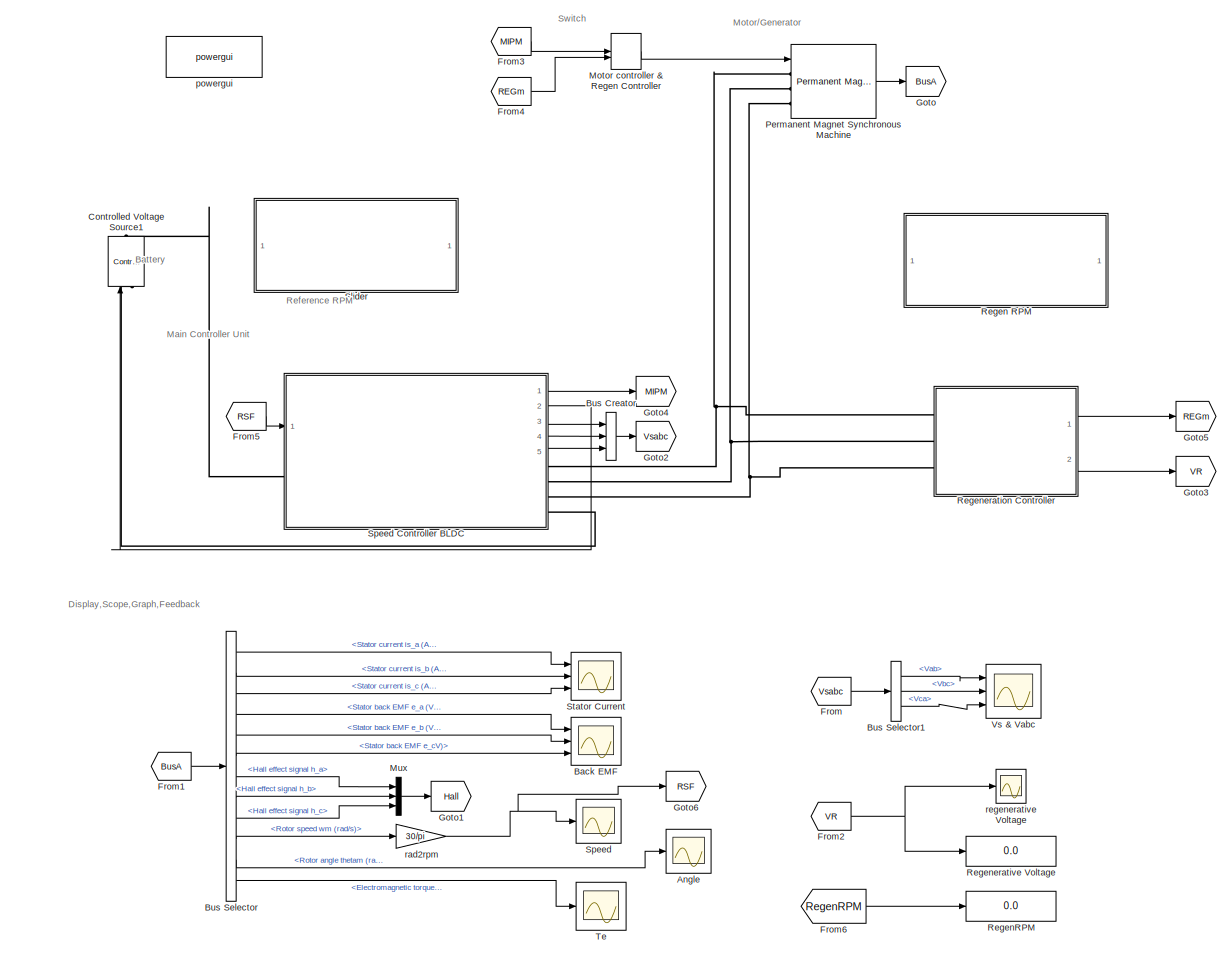
[diagram: root canvas - part 1/1, most of the canvas]
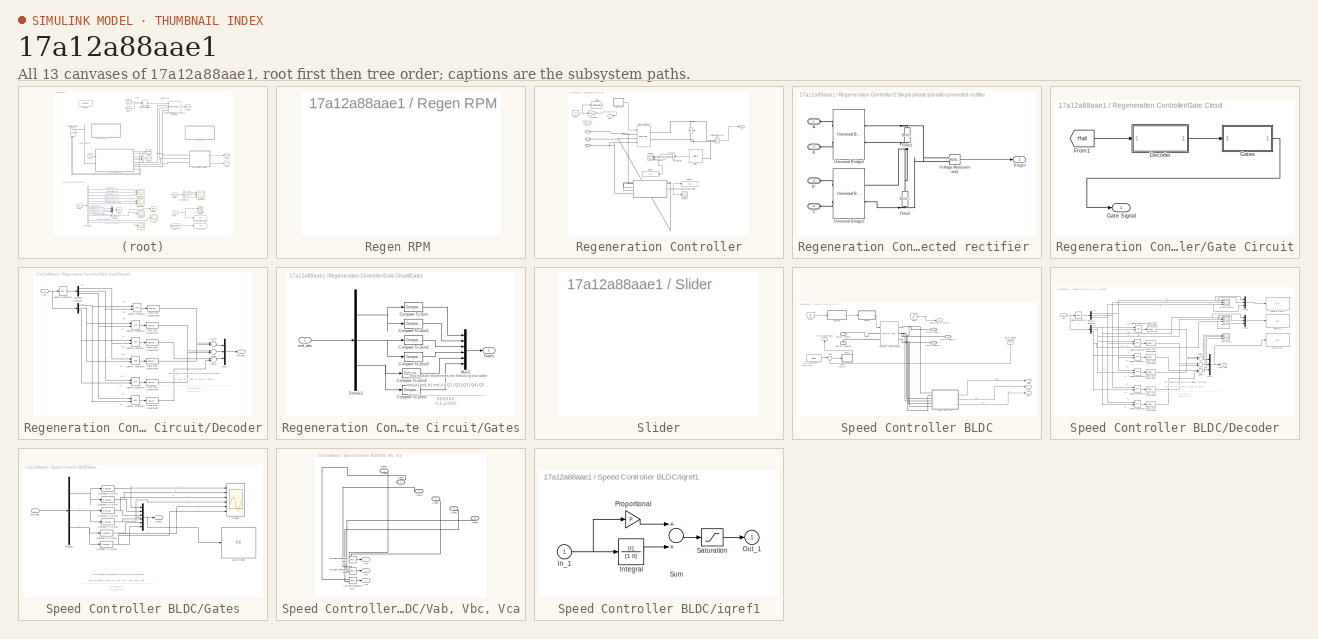
[diagram: thumbnail index - all 13 canvases of the model, root first then tree order]
MODEL slx_17a12a88aae1
KIND model
CONFIG AbsTol = auto
CONFIG EnableMultiTasking = off
CONFIG FixedStep = auto
CONFIG MaxStep = 1e-4
CONFIG MinStep = auto
CONFIG RelTol = 1e-3
CONFIG SampleTimeConstraint = Unconstrained
CONFIG Solver = VariableStepAuto
CONFIG SolverName = VariableStepAuto
CONFIG StartTime = 0.0
CONFIG StopTime = 5
BLOCK [Scope]  Angle 
  NumInputPorts = 1
  Ports = [1]
  ScopeSpecificationString = Simulink.scopes.TimeScopeBlockCfg('CurrentConfiguration', extmgr.ConfigurationSet(extmgr.Configuration('Core','General UI',true),extmgr.Configuration('Core','Source UI',true),extmgr.Configuration('Sources','WiredSimulink',true,'DataLoggingVariableName','ScopeData1'),extmgr.Configuration('Visuals','Time Domain',true,'SerializedDisplays',{struct('MinYLimReal','-256.34845','MaxYLimReal','776.25714','...<+2119ch>
BLOCK [Scope] Back EMF 
  NumInputPorts = 3
  Ports = [3]
  ScopeSpecificationString = Simulink.scopes.TimeScopeBlockCfg('CurrentConfiguration', extmgr.ConfigurationSet(extmgr.Configuration('Core','General UI',true),extmgr.Configuration('Core','Source UI',true),extmgr.Configuration('Sources','WiredSimulink',true),extmgr.Configuration('Visuals','Time Domain',true,'SerializedDisplays',{struct('MinYLimReal','-23.56021','MaxYLimReal','23.56021','YLabelReal','','MinYLimMag','0.00000','Ma...<+2888ch>
BLOCK [BusCreator] Bus Creator
  DisplayOption = bar
  InheritFromInputs = on
  Inputs = 3
  Ports = [3, 1]
BLOCK [BusSelector] Bus Selector
  OutputAsBus = off
  OutputSignals = Stator current is_a (A),Stator current is_b (A),Stator current is_c (A),Stator back EMF e_a (V),Stator back EMF e_b (V),Stator back EMF e_cV),Hall effect signal h_a,Hall effect signal h_b,Hall effect signal h_c,Rotor speed wm (rad/s),Rotor angle thetam (rad),Electromagnetic torque Te (N*m)
  Ports = [1, 12]
BLOCK [BusSelector] Bus Selector1
  OutputAsBus = off
  OutputSignals = Vab,Vbc,Vca
  Ports = [1, 3]
BLOCK [Reference] Controlled Voltage Source1  REF=powerlib/Electrical
Sources/Controlled Voltage Source
  Ports = [1, 0, 0, 0, 0, 1, 1]
  SourceBlock = powerlib/Electrical\nSources/Controlled Voltage Source
  SourceProductBaseCode = PS
  SourceProductName = Simscape Power Systems
  SourceType = Controlled Voltage Source
BLOCK [From] From
  GotoTag = Vsabc
  TagVisibility = global
BLOCK [From] From1
  GotoTag = BusA
  TagVisibility = global
BLOCK [From] From2
  GotoTag = VR
  TagVisibility = global
BLOCK [From] From3
  GotoTag = MIPM
  TagVisibility = global
BLOCK [From] From4
  GotoTag = REGm
  TagVisibility = global
BLOCK [From] From5
  GotoTag = RSF
  TagVisibility = global
BLOCK [From] From6
  GotoTag = RegenRPM
  TagVisibility = global
BLOCK [Goto] Goto
  GotoTag = BusA
  TagVisibility = global
BLOCK [Goto] Goto1
  GotoTag = Hall
  TagVisibility = global
BLOCK [Goto] Goto2
  GotoTag = Vsabc
  TagVisibility = global
BLOCK [Goto] Goto3
  GotoTag = VR
  TagVisibility = global
BLOCK [Goto] Goto4
  GotoTag = MIPM
  TagVisibility = global
BLOCK [Goto] Goto5
  GotoTag = REGm
  TagVisibility = global
BLOCK [Goto] Goto6
  GotoTag = RSF
  TagVisibility = global
BLOCK [ManualSwitch] Motor controller & Regen Controller 
BLOCK [Mux] Mux
  DisplayOption = bar
  Inputs = 3
  Ports = [3, 1]
BLOCK [Reference] Permanent Magnet Synchronous Machine  REF=powerlib/Machines/Permanent Magnet
Synchronous Machine
  Ports = [1, 1, 0, 0, 0, 3]
  SourceBlock = powerlib/Machines/Permanent Magnet\nSynchronous Machine
  SourceProductBaseCode = PS
  SourceProductName = Simscape Power Systems
  SourceType = Permanent Magnet Synchronous Machine
BLOCK [SubSystem] Regen RPM 
  DialogController = hmiCreateDDGDialog
  IsWebBlock = on
  MaskHideContents = on
  Ports = []
  RequestExecContextInheritance = off
  Variant = off
BLOCK [Display] RegenRPM
  Decimation = 1
  Ports = [1]
BLOCK [SubSystem] Regeneration Controller
  Ports = [0, 2, 0, 0, 0, 3]
  RequestExecContextInheritance = off
  Variant = off
BLOCK [SubSystem] Regeneration Controller/2 SIngle phase parallel connected rectifier 
  Ports = [0, 1, 0, 0, 0, 4]
  RequestExecContextInheritance = off
  Variant = off
BLOCK [PMIOPort] Regeneration Controller/2 SIngle phase parallel connected rectifier /A
  Port = 1
  Side = Left
BLOCK [PMIOPort] Regeneration Controller/2 SIngle phase parallel connected rectifier /B
  Port = 2
  Side = Left
BLOCK [PMIOPort] Regeneration Controller/2 SIngle phase parallel connected rectifier /B'
  Port = 3
  Side = Left
BLOCK [PMIOPort] Regeneration Controller/2 SIngle phase parallel connected rectifier /C
  Port = 4
  Side = Left
BLOCK [Reference] Regeneration Controller/2 SIngle phase parallel connected rectifier /Filter1  REF=powerlib/Elements/Series RLC Branch
  Ports = [0, 0, 0, 0, 0, 1, 1]
  SourceBlock = powerlib/Elements/Series RLC Branch
  SourceProductBaseCode = PS
  SourceProductName = Simscape Power Systems
  SourceType = Series RLC Branch
BLOCK [Reference] Regeneration Controller/2 SIngle phase parallel connected rectifier /Filter2  REF=powerlib/Elements/Series RLC Branch
  Ports = [0, 0, 0, 0, 0, 1, 1]
  SourceBlock = powerlib/Elements/Series RLC Branch
  SourceProductBaseCode = PS
  SourceProductName = Simscape Power Systems
  SourceType = Series RLC Branch
BLOCK [Reference] Regeneration Controller/2 SIngle phase parallel connected rectifier /Universal Bridge1  REF=powerlib/Power
Electronics/Universal Bridge
  Ports = [0, 0, 0, 0, 0, 2, 2]
  SourceBlock = powerlib/Power\nElectronics/Universal Bridge
  SourceProductBaseCode = PS
  SourceProductName = Simscape Power Systems
  SourceType = Universal Bridge
BLOCK [Reference] Regeneration Controller/2 SIngle phase parallel connected rectifier /Universal Bridge2  REF=powerlib/Power
Electronics/Universal Bridge
  Ports = [0, 0, 0, 0, 0, 2, 2]
  SourceBlock = powerlib/Power\nElectronics/Universal Bridge
  SourceProductBaseCode = PS
  SourceProductName = Simscape Power Systems
  SourceType = Universal Bridge
BLOCK [Reference] Regeneration Controller/2 SIngle phase parallel connected rectifier /Voltage Measurement1  REF=powerlib/Measurements/Voltage Measurement
  Ports = [0, 1, 0, 0, 0, 2]
  SourceBlock = powerlib/Measurements/Voltage Measurement
  SourceProductBaseCode = PS
  SourceProductName = Simscape Power Systems
  SourceType = Voltage Measurement
  UserDataPersistent = on
BLOCK [Outport] Regeneration Controller/2 SIngle phase parallel connected rectifier /Vregen 
  IconDisplay = Port number
BLOCK [PMIOPort] Regeneration Controller/A
  Port = 1
  Side = Left
BLOCK [PMIOPort] Regeneration Controller/B
  Port = 2
  Side = Left
BLOCK [Reference] Regeneration Controller/Battery  REF=electricdrivelib/Extra Sources/Battery
  Ports = [0, 1, 0, 0, 0, 2]
  SourceBlock = electricdrivelib/Extra Sources/Battery
  SourceProductBaseCode = PS
  SourceProductName = Simscape Power Systems
  SourceType = Battery
BLOCK [BusSelector] Regeneration Controller/Bus Selector
  OutputAsBus = off
  OutputSignals = SOC (%),Current (A),Voltage (V)
  Ports = [1, 3]
BLOCK [PMIOPort] Regeneration Controller/C
  Port = 3
  Side = Left
BLOCK [Display] Regeneration Controller/Display
  Decimation = 1
  Format = long
  Ports = [1]
BLOCK [Display] Regeneration Controller/Display1
  Decimation = 1
  Format = long
  Ports = [1]
BLOCK [Reference] Regeneration Controller/Filter  REF=powerlib/Elements/Series RLC Branch
  Ports = [0, 0, 0, 0, 0, 1, 1]
  SourceBlock = powerlib/Elements/Series RLC Branch
  SourceProductBaseCode = PS
  SourceProductName = Simscape Power Systems
  SourceType = Series RLC Branch
BLOCK [SubSystem] Regeneration Controller/Gate Circuit
  Ports = [0, 1]
  RequestExecContextInheritance = off
  Variant = off
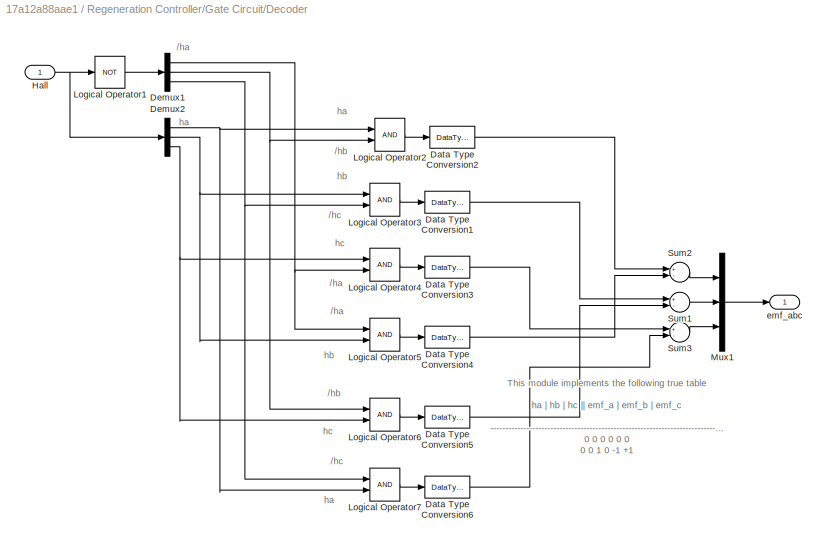
BLOCK [SubSystem] Regeneration Controller/Gate Circuit/Decoder
  Ports = [1, 1]
  RequestExecContextInheritance = off
  Variant = off
BLOCK [DataTypeConversion] Regeneration Controller/Gate Circuit/Decoder/Data Type Conversion1
  RndMeth = Floor
  SaturateOnIntegerOverflow = off
BLOCK [DataTypeConversion] Regeneration Controller/Gate Circuit/Decoder/Data Type Conversion2
  RndMeth = Floor
  SaturateOnIntegerOverflow = off
BLOCK [DataTypeConversion] Regeneration Controller/Gate Circuit/Decoder/Data Type Conversion3
  RndMeth = Floor
  SaturateOnIntegerOverflow = off
BLOCK [DataTypeConversion] Regeneration Controller/Gate Circuit/Decoder/Data Type Conversion4
  RndMeth = Floor
  SaturateOnIntegerOverflow = off
BLOCK [DataTypeConversion] Regeneration Controller/Gate Circuit/Decoder/Data Type Conversion5
  RndMeth = Floor
  SaturateOnIntegerOverflow = off
BLOCK [DataTypeConversion] Regeneration Controller/Gate Circuit/Decoder/Data Type Conversion6
  RndMeth = Floor
  SaturateOnIntegerOverflow = off
BLOCK [Demux] Regeneration Controller/Gate Circuit/Decoder/Demux1
  DisplayOption = bar
  Outputs = 3
  Ports = [1, 3]
BLOCK [Demux] Regeneration Controller/Gate Circuit/Decoder/Demux2
  DisplayOption = bar
  Outputs = 3
  Ports = [1, 3]
BLOCK [Inport] Regeneration Controller/Gate Circuit/Decoder/Hall 
  IconDisplay = Port number
BLOCK [Logic] Regeneration Controller/Gate Circuit/Decoder/Logical Operator1
  AllPortsSameDT = off
  Operator = NOT
  OutDataTypeStr = boolean
  Ports = [1, 1]
BLOCK [Logic] Regeneration Controller/Gate Circuit/Decoder/Logical Operator2
  AllPortsSameDT = off
  OutDataTypeStr = boolean
  Ports = [2, 1]
BLOCK [Logic] Regeneration Controller/Gate Circuit/Decoder/Logical Operator3
  AllPortsSameDT = off
  OutDataTypeStr = boolean
  Ports = [2, 1]
BLOCK [Logic] Regeneration Controller/Gate Circuit/Decoder/Logical Operator4
  AllPortsSameDT = off
  OutDataTypeStr = boolean
  Ports = [2, 1]
BLOCK [Logic] Regeneration Controller/Gate Circuit/Decoder/Logical Operator5
  AllPortsSameDT = off
  OutDataTypeStr = boolean
  Ports = [2, 1]
BLOCK [Logic] Regeneration Controller/Gate Circuit/Decoder/Logical Operator6
  AllPortsSameDT = off
  OutDataTypeStr = boolean
  Ports = [2, 1]
BLOCK [Logic] Regeneration Controller/Gate Circuit/Decoder/Logical Operator7
  AllPortsSameDT = off
  OutDataTypeStr = boolean
  Ports = [2, 1]
BLOCK [Mux] Regeneration Controller/Gate Circuit/Decoder/Mux1
  DisplayOption = bar
  Inputs = 3
  Ports = [3, 1]
BLOCK [Sum] Regeneration Controller/Gate Circuit/Decoder/Sum1
  InputSameDT = off
  Inputs = +-
  OutDataTypeStr = double
  Ports = [2, 1]
  SaturateOnIntegerOverflow = off
BLOCK [Sum] Regeneration Controller/Gate Circuit/Decoder/Sum2
  InputSameDT = off
  Inputs = +-
  OutDataTypeStr = double
  Ports = [2, 1]
  SaturateOnIntegerOverflow = off
BLOCK [Sum] Regeneration Controller/Gate Circuit/Decoder/Sum3
  InputSameDT = off
  Inputs = +-
  OutDataTypeStr = double
  Ports = [2, 1]
  SaturateOnIntegerOverflow = off
BLOCK [Outport] Regeneration Controller/Gate Circuit/Decoder/emf_abc
  IconDisplay = Port number
BLOCK [From] Regeneration Controller/Gate Circuit/From1
  GotoTag = Hall
  TagVisibility = global
BLOCK [Outport] Regeneration Controller/Gate Circuit/Gate Signal 
  IconDisplay = Port number
BLOCK [SubSystem] Regeneration Controller/Gate Circuit/Gates
  Ports = [1, 1]
  RequestExecContextInheritance = off
  Variant = off
BLOCK [Reference] Regeneration Controller/Gate Circuit/Gates/Compare To Zero  REF=simulink/Logic and Bit
Operations/Compare
To Zero
  Ports = [1, 1]
  SourceBlock = simulink/Logic and Bit\nOperations/Compare\nTo Zero
  SourceProductBaseCode = SL
  SourceProductName = Simulink
  SourceType = Compare To Zero
BLOCK [Reference] Regeneration Controller/Gate Circuit/Gates/Compare To Zero1  REF=simulink/Logic and Bit
Operations/Compare
To Zero
  Ports = [1, 1]
  SourceBlock = simulink/Logic and Bit\nOperations/Compare\nTo Zero
  SourceProductBaseCode = SL
  SourceProductName = Simulink
  SourceType = Compare To Zero
BLOCK [Reference] Regeneration Controller/Gate Circuit/Gates/Compare To Zero2  REF=simulink/Logic and Bit
Operations/Compare
To Zero
  Ports = [1, 1]
  SourceBlock = simulink/Logic and Bit\nOperations/Compare\nTo Zero
  SourceProductBaseCode = SL
  SourceProductName = Simulink
  SourceType = Compare To Zero
BLOCK [Reference] Regeneration Controller/Gate Circuit/Gates/Compare To Zero3  REF=simulink/Logic and Bit
Operations/Compare
To Zero
  Ports = [1, 1]
  SourceBlock = simulink/Logic and Bit\nOperations/Compare\nTo Zero
  SourceProductBaseCode = SL
  SourceProductName = Simulink
  SourceType = Compare To Zero
BLOCK [Reference] Regeneration Controller/Gate Circuit/Gates/Compare To Zero4  REF=simulink/Logic and Bit
Operations/Compare
To Zero
  Ports = [1, 1]
  SourceBlock = simulink/Logic and Bit\nOperations/Compare\nTo Zero
  SourceProductBaseCode = SL
  SourceProductName = Simulink
  SourceType = Compare To Zero
BLOCK [Reference] Regeneration Controller/Gate Circuit/Gates/Compare To Zero5  REF=simulink/Logic and Bit
Operations/Compare
To Zero
  Ports = [1, 1]
  SourceBlock = simulink/Logic and Bit\nOperations/Compare\nTo Zero
  SourceProductBaseCode = SL
  SourceProductName = Simulink
  SourceType = Compare To Zero
BLOCK [Demux] Regeneration Controller/Gate Circuit/Gates/Demux2
  DisplayOption = bar
  Outputs = 3
  Ports = [1, 3]
BLOCK [Outport] Regeneration Controller/Gate Circuit/Gates/Gates
  IconDisplay = Port number
BLOCK [Mux] Regeneration Controller/Gate Circuit/Gates/Mux3
  DisplayOption = bar
  Inputs = 6
  Ports = [6, 1]
BLOCK [Inport] Regeneration Controller/Gate Circuit/Gates/emf_abc 
  IconDisplay = Port number
BLOCK [Goto] Regeneration Controller/Goto3
  GotoTag = RegenRPM
  TagVisibility = global
BLOCK [Outport] Regeneration Controller/MEch
  IconDisplay = Port number
BLOCK [Constant] Regeneration Controller/RPM 
  Value = 750
BLOCK [Scope] Regeneration Controller/Scope
  NumInputPorts = 3
  Ports = [3]
  ScopeSpecificationString = Simulink.scopes.TimeScopeBlockCfg('CurrentConfiguration', extmgr.ConfigurationSet(extmgr.Configuration('Core','General UI',true),extmgr.Configuration('Core','Source UI',true),extmgr.Configuration('Sources','WiredSimulink',true,'DataLoggingVariableName','ScopeData1'),extmgr.Configuration('Visuals','Time Domain',true),extmgr.Configuration('Tools','Plot Navigation',true),extmgr.Configuration('Tools',...<+40ch>
BLOCK [Scope] Regeneration Controller/Scope1
  NumInputPorts = 1
  Ports = [1]
  ScopeSpecificationString = Simulink.scopes.TimeScopeBlockCfg('CurrentConfiguration', extmgr.ConfigurationSet(extmgr.Configuration('Core','General UI',true),extmgr.Configuration('Core','Source UI',true),extmgr.Configuration('Sources','WiredSimulink',true,'DataLoggingVariableName','ScopeData1'),extmgr.Configuration('Visuals','Time Domain',true,'SerializedDisplays',{struct('MinYLimReal','-3.66862','MaxYLimReal','33.01755','YLa...<+1446ch>
BLOCK [Gain] Regeneration Controller/To rad//sec
  Gain = 1/9.55
  OutDataTypeStr = Inherit: Inherit via internal rule
  ParamDataTypeStr = Inherit: Inherit via internal rule
  SaturateOnIntegerOverflow = off
BLOCK [Reference] Regeneration Controller/Universal Bridge  REF=powerlib/Power
Electronics/Universal Bridge
  Ports = [1, 0, 0, 0, 0, 3, 2]
  SourceBlock = powerlib/Power\nElectronics/Universal Bridge
  SourceProductBaseCode = PS
  SourceProductName = Simscape Power Systems
  SourceType = Universal Bridge
BLOCK [Outport] Regeneration Controller/VR
  IconDisplay = Port number
  Port = 2
BLOCK [Reference] Regeneration Controller/Voltage Measurement  REF=powerlib/Measurements/Voltage Measurement
  Ports = [0, 1, 0, 0, 0, 2]
  SourceBlock = powerlib/Measurements/Voltage Measurement
  SourceProductBaseCode = PS
  SourceProductName = Simscape Power Systems
  SourceType = Voltage Measurement
  UserDataPersistent = on
BLOCK [Display] Regenerative Voltage
  Decimation = 1
  Ports = [1]
BLOCK [SubSystem] Slider
  DialogController = hmiCreateDDGDialog
  IsWebBlock = on
  MaskHideContents = on
  Ports = []
  RequestExecContextInheritance = off
  Variant = off
BLOCK [Scope] Speed 
  NumInputPorts = 1
  Ports = [1]
  ScopeSpecificationString = Simulink.scopes.TimeScopeBlockCfg('CurrentConfiguration', extmgr.ConfigurationSet(extmgr.Configuration('Core','General UI',true),extmgr.Configuration('Core','Source UI',true),extmgr.Configuration('Sources','WiredSimulink',true,'DataLoggingVariableName','ScopeData1'),extmgr.Configuration('Visuals','Time Domain',true,'SerializedDisplays',{struct('MinYLimReal','-256.34845','MaxYLimReal','776.25714','...<+2119ch>
BLOCK [SubSystem] Speed Controller BLDC
  Ports = [1, 5, 0, 0, 0, 1, 4]
  RequestExecContextInheritance = off
  Variant = off
BLOCK [Sum] Speed Controller BLDC/Add3
  IconShape = round
  InputSameDT = off
  Inputs = |+-
  OutDataTypeStr = Inherit: Inherit via internal rule
  Ports = [2, 1]
  SaturateOnIntegerOverflow = off
BLOCK [PMIOPort] Speed Controller BLDC/Battery Negative
  Port = 5
  Side = Right
BLOCK [PMIOPort] Speed Controller BLDC/Battery Poritive 
  Port = 3
  Side = Left
BLOCK [Constant] Speed Controller BLDC/Constant4
  Value = 3000
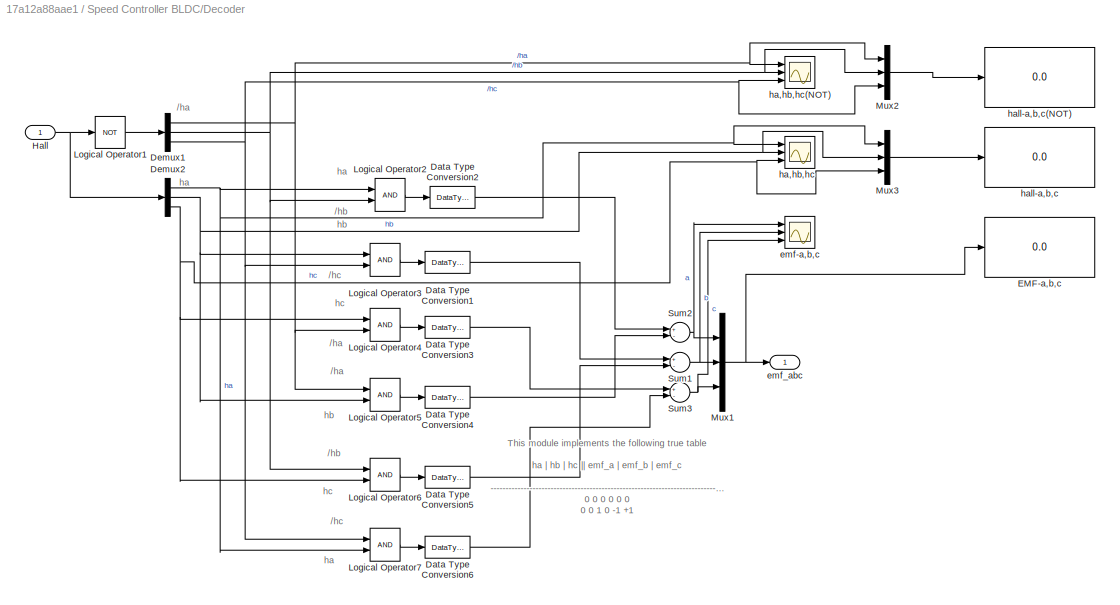
BLOCK [SubSystem] Speed Controller BLDC/Decoder
  Ports = [1, 1]
  RequestExecContextInheritance = off
  Variant = off
BLOCK [DataTypeConversion] Speed Controller BLDC/Decoder/Data Type Conversion1
  RndMeth = Floor
  SaturateOnIntegerOverflow = off
BLOCK [DataTypeConversion] Speed Controller BLDC/Decoder/Data Type Conversion2
  RndMeth = Floor
  SaturateOnIntegerOverflow = off
BLOCK [DataTypeConversion] Speed Controller BLDC/Decoder/Data Type Conversion3
  RndMeth = Floor
  SaturateOnIntegerOverflow = off
BLOCK [DataTypeConversion] Speed Controller BLDC/Decoder/Data Type Conversion4
  RndMeth = Floor
  SaturateOnIntegerOverflow = off
BLOCK [DataTypeConversion] Speed Controller BLDC/Decoder/Data Type Conversion5
  RndMeth = Floor
  SaturateOnIntegerOverflow = off
BLOCK [DataTypeConversion] Speed Controller BLDC/Decoder/Data Type Conversion6
  RndMeth = Floor
  SaturateOnIntegerOverflow = off
BLOCK [Demux] Speed Controller BLDC/Decoder/Demux1
  DisplayOption = bar
  Outputs = 3
  Ports = [1, 3]
BLOCK [Demux] Speed Controller BLDC/Decoder/Demux2
  DisplayOption = bar
  Outputs = 3
  Ports = [1, 3]
BLOCK [Display] Speed Controller BLDC/Decoder/EMF-a,b,c
  Decimation = 1
  Ports = [1]
BLOCK [Inport] Speed Controller BLDC/Decoder/Hall 
  IconDisplay = Port number
BLOCK [Logic] Speed Controller BLDC/Decoder/Logical Operator1
  AllPortsSameDT = off
  Operator = NOT
  OutDataTypeStr = boolean
  Ports = [1, 1]
BLOCK [Logic] Speed Controller BLDC/Decoder/Logical Operator2
  AllPortsSameDT = off
  OutDataTypeStr = boolean
  Ports = [2, 1]
BLOCK [Logic] Speed Controller BLDC/Decoder/Logical Operator3
  AllPortsSameDT = off
  OutDataTypeStr = boolean
  Ports = [2, 1]
BLOCK [Logic] Speed Controller BLDC/Decoder/Logical Operator4
  AllPortsSameDT = off
  OutDataTypeStr = boolean
  Ports = [2, 1]
BLOCK [Logic] Speed Controller BLDC/Decoder/Logical Operator5
  AllPortsSameDT = off
  OutDataTypeStr = boolean
  Ports = [2, 1]
BLOCK [Logic] Speed Controller BLDC/Decoder/Logical Operator6
  AllPortsSameDT = off
  OutDataTypeStr = boolean
  Ports = [2, 1]
BLOCK [Logic] Speed Controller BLDC/Decoder/Logical Operator7
  AllPortsSameDT = off
  OutDataTypeStr = boolean
  Ports = [2, 1]
BLOCK [Mux] Speed Controller BLDC/Decoder/Mux1
  DisplayOption = bar
  Inputs = 3
  Ports = [3, 1]
BLOCK [Mux] Speed Controller BLDC/Decoder/Mux2
  DisplayOption = bar
  Inputs = 3
  Ports = [3, 1]
BLOCK [Mux] Speed Controller BLDC/Decoder/Mux3
  DisplayOption = bar
  Inputs = 3
  Ports = [3, 1]
BLOCK [Sum] Speed Controller BLDC/Decoder/Sum1
  InputSameDT = off
  Inputs = +-
  OutDataTypeStr = double
  Ports = [2, 1]
  SaturateOnIntegerOverflow = off
BLOCK [Sum] Speed Controller BLDC/Decoder/Sum2
  InputSameDT = off
  Inputs = +-
  OutDataTypeStr = double
  Ports = [2, 1]
  SaturateOnIntegerOverflow = off
BLOCK [Sum] Speed Controller BLDC/Decoder/Sum3
  InputSameDT = off
  Inputs = +-
  OutDataTypeStr = double
  Ports = [2, 1]
  SaturateOnIntegerOverflow = off
BLOCK [Scope] Speed Controller BLDC/Decoder/emf-a,b,c
  NumInputPorts = 3
  Ports = [3]
  ScopeSpecificationString = Simulink.scopes.TimeScopeBlockCfg('CurrentConfiguration', extmgr.ConfigurationSet(extmgr.Configuration('Core','General UI',true),extmgr.Configuration('Core','Source UI',true),extmgr.Configuration('Sources','WiredSimulink',true,'DataLoggingVariableName','ScopeData3'),extmgr.Configuration('Visuals','Time Domain',true,'SerializedDisplays',{struct('MinYLimReal','-1.25','MaxYLimReal','1.25','YLabelReal...<+2940ch>
BLOCK [Outport] Speed Controller BLDC/Decoder/emf_abc
  IconDisplay = Port number
BLOCK [Scope] Speed Controller BLDC/Decoder/ha,hb,hc
  NumInputPorts = 3
  Ports = [3]
  ScopeSpecificationString = Simulink.scopes.TimeScopeBlockCfg('CurrentConfiguration', extmgr.ConfigurationSet(extmgr.Configuration('Core','General UI',true),extmgr.Configuration('Core','Source UI',true),extmgr.Configuration('Sources','WiredSimulink',true,'DataLoggingVariableName','ScopeData2'),extmgr.Configuration('Visuals','Time Domain',true,'SerializedDisplays',{struct('MinYLimReal','-0.125','MaxYLimReal','1.125','YLabelRe...<+2884ch>
BLOCK [Scope] Speed Controller BLDC/Decoder/ha,hb,hc(NOT)
  NumInputPorts = 3
  Ports = [3]
  ScopeSpecificationString = Simulink.scopes.TimeScopeBlockCfg('CurrentConfiguration', extmgr.ConfigurationSet(extmgr.Configuration('Core','General UI',true),extmgr.Configuration('Core','Source UI',true),extmgr.Configuration('Sources','WiredSimulink',true,'DataLoggingVariableName','ScopeData1'),extmgr.Configuration('Visuals','Time Domain',true,'SerializedDisplays',{struct('MinYLimReal','-0.125','MaxYLimReal','1.125','YLabelRe...<+2846ch>
BLOCK [Display] Speed Controller BLDC/Decoder/hall-a,b,c
  Decimation = 1
  Ports = [1]
BLOCK [Display] Speed Controller BLDC/Decoder/hall-a,b,c(NOT)
  Decimation = 1
  Ports = [1]
BLOCK [From] Speed Controller BLDC/From1
  GotoTag = Hall
  TagVisibility = global
BLOCK [SubSystem] Speed Controller BLDC/Gates
  Ports = [1, 1]
  RequestExecContextInheritance = off
  Variant = off
BLOCK [Reference] Speed Controller BLDC/Gates/Compare To Zero  REF=simulink/Logic and Bit
Operations/Compare
To Zero
  Ports = [1, 1]
  SourceBlock = simulink/Logic and Bit\nOperations/Compare\nTo Zero
  SourceProductBaseCode = SL
  SourceProductName = Simulink
  SourceType = Compare To Zero
BLOCK [Reference] Speed Controller BLDC/Gates/Compare To Zero1  REF=simulink/Logic and Bit
Operations/Compare
To Zero
  Ports = [1, 1]
  SourceBlock = simulink/Logic and Bit\nOperations/Compare\nTo Zero
  SourceProductBaseCode = SL
  SourceProductName = Simulink
  SourceType = Compare To Zero
BLOCK [Reference] Speed Controller BLDC/Gates/Compare To Zero2  REF=simulink/Logic and Bit
Operations/Compare
To Zero
  Ports = [1, 1]
  SourceBlock = simulink/Logic and Bit\nOperations/Compare\nTo Zero
  SourceProductBaseCode = SL
  SourceProductName = Simulink
  SourceType = Compare To Zero
BLOCK [Reference] Speed Controller BLDC/Gates/Compare To Zero3  REF=simulink/Logic and Bit
Operations/Compare
To Zero
  Ports = [1, 1]
  SourceBlock = simulink/Logic and Bit\nOperations/Compare\nTo Zero
  SourceProductBaseCode = SL
  SourceProductName = Simulink
  SourceType = Compare To Zero
BLOCK [Reference] Speed Controller BLDC/Gates/Compare To Zero4  REF=simulink/Logic and Bit
Operations/Compare
To Zero
  Ports = [1, 1]
  SourceBlock = simulink/Logic and Bit\nOperations/Compare\nTo Zero
  SourceProductBaseCode = SL
  SourceProductName = Simulink
  SourceType = Compare To Zero
BLOCK [Reference] Speed Controller BLDC/Gates/Compare To Zero5  REF=simulink/Logic and Bit
Operations/Compare
To Zero
  Ports = [1, 1]
  SourceBlock = simulink/Logic and Bit\nOperations/Compare\nTo Zero
  SourceProductBaseCode = SL
  SourceProductName = Simulink
  SourceType = Compare To Zero
BLOCK [Demux] Speed Controller BLDC/Gates/Demux2
  DisplayOption = bar
  Outputs = 3
  Ports = [1, 3]
BLOCK [Display] Speed Controller BLDC/Gates/Gate Signal
  Decimation = 1
  Ports = [1]
BLOCK [Outport] Speed Controller BLDC/Gates/Gates
  IconDisplay = Port number
BLOCK [Mux] Speed Controller BLDC/Gates/Mux3
  DisplayOption = bar
  Inputs = 6
  Ports = [6, 1]
BLOCK [Scope] Speed Controller BLDC/Gates/Scope1
  NumInputPorts = 6
  Ports = [6]
  ScopeSpecificationString = Simulink.scopes.TimeScopeBlockCfg('CurrentConfiguration', extmgr.ConfigurationSet(extmgr.Configuration('Core','General UI',true),extmgr.Configuration('Core','Source UI',true),extmgr.Configuration('Sources','WiredSimulink',true,'DataLoggingVariableName','ScopeData4'),extmgr.Configuration('Visuals','Time Domain',true,'SerializedDisplays',{struct('MinYLimReal','-0.125','MaxYLimReal','1.125','YLabelRe...<+5290ch>
BLOCK [Inport] Speed Controller BLDC/Gates/emf_abc 
  IconDisplay = Port number
BLOCK [Reference] Speed Controller BLDC/Inverter (Three-Phase)  REF=electricdrivelib/Fundamental Drive Blocks/Inverter
(Three-Phase)
  AttributesFormatString = %<BlockChoice>
  Ports = [1, 0, 0, 0, 0, 2, 3]
  SourceBlock = electricdrivelib/Fundamental Drive Blocks/Inverter\n(Three-Phase)
  SourceProductBaseCode = PS
  SourceProductName = Simscape Power Systems
  SourceType = Inverter (Three-phase)
BLOCK [Outport] Speed Controller BLDC/Mech input to motor
  IconDisplay = Port number
BLOCK [PMIOPort] Speed Controller BLDC/Motor supply A
  Port = 1
  Side = Right
BLOCK [PMIOPort] Speed Controller BLDC/Motor supply B
  Port = 2
  Side = Right
BLOCK [PMIOPort] Speed Controller BLDC/Motor supply C
  Port = 4
  Side = Right
BLOCK [Outport] Speed Controller BLDC/PI controller signal
  IconDisplay = Port number
  Port = 2
BLOCK [Inport] Speed Controller BLDC/Rotor Speed feedback
  IconDisplay = Port number
BLOCK [Step] Speed Controller BLDC/Step
  After = 3
  SampleTime = 0
  Time = .1
BLOCK [Outport] Speed Controller BLDC/Vab
  IconDisplay = Port number
  Port = 3
BLOCK [SubSystem] Speed Controller BLDC/Vab, Vbc, Vca
  Ports = [0, 3, 0, 0, 0, 6]
  RequestExecContextInheritance = off
  Variant = off
BLOCK [PMIOPort] Speed Controller BLDC/Vab, Vbc, Vca/Conn1
  Port = 1
  Side = Left
BLOCK [PMIOPort] Speed Controller BLDC/Vab, Vbc, Vca/Conn2
  Port = 2
  Side = Left
BLOCK [PMIOPort] Speed Controller BLDC/Vab, Vbc, Vca/Conn3
  Port = 3
  Side = Left
BLOCK [PMIOPort] Speed Controller BLDC/Vab, Vbc, Vca/Conn4
  Port = 4
  Side = Left
BLOCK [PMIOPort] Speed Controller BLDC/Vab, Vbc, Vca/Conn5
  Port = 5
  Side = Left
BLOCK [PMIOPort] Speed Controller BLDC/Vab, Vbc, Vca/Conn6
  Port = 6
  Side = Left
BLOCK [Outport] Speed Controller BLDC/Vab, Vbc, Vca/Vab 
  IconDisplay = Port number
BLOCK [Outport] Speed Controller BLDC/Vab, Vbc, Vca/Vbc 
  IconDisplay = Port number
  Port = 2
BLOCK [Outport] Speed Controller BLDC/Vab, Vbc, Vca/Vca 
  IconDisplay = Port number
  Port = 3
BLOCK [Reference] Speed Controller BLDC/Vab, Vbc, Vca/Voltage Measurement2  REF=powerlib/Measurements/Voltage Measurement
  Ports = [0, 1, 0, 0, 0, 2]
  SourceBlock = powerlib/Measurements/Voltage Measurement
  SourceProductBaseCode = PS
  SourceProductName = Simscape Power Systems
  SourceType = Voltage Measurement
BLOCK [Reference] Speed Controller BLDC/Vab, Vbc, Vca/Voltage Measurement3  REF=powerlib/Measurements/Voltage Measurement
  Ports = [0, 1, 0, 0, 0, 2]
  SourceBlock = powerlib/Measurements/Voltage Measurement
  SourceProductBaseCode = PS
  SourceProductName = Simscape Power Systems
  SourceType = Voltage Measurement
BLOCK [Reference] Speed Controller BLDC/Vab, Vbc, Vca/Voltage Measurement4  REF=powerlib/Measurements/Voltage Measurement
  Ports = [0, 1, 0, 0, 0, 2]
  SourceBlock = powerlib/Measurements/Voltage Measurement
  SourceProductBaseCode = PS
  SourceProductName = Simscape Power Systems
  SourceType = Voltage Measurement
BLOCK [Outport] Speed Controller BLDC/Vbc
  IconDisplay = Port number
  Port = 4
BLOCK [Outport] Speed Controller BLDC/Vca
  IconDisplay = Port number
  Port = 5
BLOCK [SubSystem] Speed Controller BLDC/iqref1
  Ports = [1, 1]
  RequestExecContextInheritance = off
  Variant = off
BLOCK [Inport] Speed Controller BLDC/iqref1/In_1
  IconDisplay = Port number
BLOCK [TransferFcn] Speed Controller BLDC/iqref1/Integral
  Denominator = [1 0]
  Numerator = [I]
BLOCK [Outport] Speed Controller BLDC/iqref1/Out_1
  IconDisplay = Port number
  InitialOutput = 0
BLOCK [Gain] Speed Controller BLDC/iqref1/Proportional
  Gain = P
BLOCK [Saturate] Speed Controller BLDC/iqref1/Saturation
  InputPortMap = u0
  LowerLimit = min
  Ports = [1, 1]
  UpperLimit = max
BLOCK [Sum] Speed Controller BLDC/iqref1/Sum
  Ports = [2, 1]
BLOCK [Scope] Stator Current 
  NumInputPorts = 3
  Ports = [3]
  ScopeSpecificationString = Simulink.scopes.TimeScopeBlockCfg('CurrentConfiguration', extmgr.ConfigurationSet(extmgr.Configuration('Core','General UI',true),extmgr.Configuration('Core','Source UI',true),extmgr.Configuration('Sources','WiredSimulink',true,'DataLoggingVariableName','ScopeData2'),extmgr.Configuration('Visuals','Time Domain',true,'SerializedDisplays',{struct('MinYLimReal','-9.82646','MaxYLimReal','9.83671','YLab...<+2922ch>
BLOCK [Scope] Te 
  NumInputPorts = 1
  Ports = [1]
  ScopeSpecificationString = Simulink.scopes.TimeScopeBlockCfg('CurrentConfiguration', extmgr.ConfigurationSet(extmgr.Configuration('Core','General UI',true),extmgr.Configuration('Core','Source UI',true),extmgr.Configuration('Sources','WiredSimulink',true,'DataLoggingVariableName','ScopeData3'),extmgr.Configuration('Visuals','Time Domain',true,'SerializedDisplays',{struct('MinYLimReal','-3.3141','MaxYLimReal','13.80834','YLab...<+1593ch>
BLOCK [Scope] Vs & Vabc 
  NumInputPorts = 3
  Ports = [3]
  ScopeSpecificationString = Simulink.scopes.TimeScopeBlockCfg('CurrentConfiguration', extmgr.ConfigurationSet(extmgr.Configuration('Core','General UI',true),extmgr.Configuration('Core','Source UI',true),extmgr.Configuration('Sources','WiredSimulink',true,'DataLoggingVariableName','ScopeData4'),extmgr.Configuration('Visuals','Time Domain',true,'SerializedDisplays',{struct('MinYLimReal','-125.22811','MaxYLimReal','125.12484','...<+3003ch>
BLOCK [Reference] powergui  REF=powerlib/powergui
  Ports = []
  Priority = 2
  SourceBlock = powerlib/powergui
  SourceProductBaseCode = PS
  SourceProductName = Simscape Power Systems
  SourceType = PSB option menu block
BLOCK [Gain] rad2rpm
  Gain = 30/pi
  OutDataTypeStr = Inherit: Inherit via internal rule
  ParamDataTypeStr = Inherit: Inherit via internal rule
  SaturateOnIntegerOverflow = off
BLOCK [Scope] regenerative Voltage
  NumInputPorts = 1
  Ports = [1]
  ScopeSpecificationString = Simulink.scopes.TimeScopeBlockCfg('CurrentConfiguration', extmgr.ConfigurationSet(extmgr.Configuration('Core','General UI',true),extmgr.Configuration('Core','Source UI',true),extmgr.Configuration('Sources','WiredSimulink',true,'DataLoggingVariableName','ScopeData1'),extmgr.Configuration('Visuals','Time Domain',true,'SerializedDisplays',{struct('MinYLimReal','-10.7811','MaxYLimReal','97.0299','YLab...<+1540ch>
ANNOTATION (root): Display,Scope,Graph,Feedback
ANNOTATION (root): Main Controller Unit
ANNOTATION (root): Motor/Generator
ANNOTATION (root): Switch
ANNOTATION (root): Battery
ANNOTATION (root): Reference RPM
ANNOTATION Regeneration Controller: RPM to rad/sec =[(RPM)*Pi]/30 =RPM/9.55
ANNOTATION Regeneration Controller/Gate Circuit/Decoder: /ha
ANNOTATION Regeneration Controller/Gate Circuit/Decoder: /hb
ANNOTATION Regeneration Controller/Gate Circuit/Decoder: /hc
ANNOTATION Regeneration Controller/Gate Circuit/Decoder: This module implements the following true table ha | hb | hc || emf_a | emf_b | emf_c -------------------------------------------------------------------------------- 0 0 0 0 0 0 0 0 1 0 -1 +1 0 1 0 -1 +1 0 0 1 1 -1 0 +1 1 0 0 +1 0 -1 1 0 1 +1 -1 0 1 1 0 0 +1 -1 1 1 1 0 0 0
ANNOTATION Regeneration Controller/Gate Circuit/Decoder: ha
ANNOTATION Regeneration Controller/Gate Circuit/Decoder: hb
ANNOTATION Regeneration Controller/Gate Circuit/Decoder: hc
ANNOTATION Regeneration Controller/Gate Circuit/Gates: This module implements the following true table emf_a | emf_b | emf_c || Q1 | Q2 | Q3 | Q4 | Q5 | Q6 ------------------------------------------------------------------------------------------------------------------ 0 0 0 0 0 0 0 0 0 0 -1 +1 0 0 0 1 1 0 -1 +1 0 0 1 1 0 0 0 -1 0 +1 0 1 0 0 1 0 +1 0 -1 1 0 0 0 0 1 +1 -1 0 1 0 0 1 0 0 0 +1 -1 0 0 1 0 0 1 0 0 0 0 0 0 0 0 0
ANNOTATION Speed Controller BLDC: Reference speed (RPM)
ANNOTATION Speed Controller BLDC: Speed regulator
ANNOTATION Speed Controller BLDC/Decoder: /ha
ANNOTATION Speed Controller BLDC/Decoder: /hb
ANNOTATION Speed Controller BLDC/Decoder: /hc
ANNOTATION Speed Controller BLDC/Decoder: This module implements the following true table ha | hb | hc || emf_a | emf_b | emf_c -------------------------------------------------------------------------------- 0 0 0 0 0 0 0 0 1 0 -1 +1 0 1 0 -1 +1 0 0 1 1 -1 0 +1 1 0 0 +1 0 -1 1 0 1 +1 -1 0 1 1 0 0 +1 -1 1 1 1 0 0 0
ANNOTATION Speed Controller BLDC/Decoder: ha
ANNOTATION Speed Controller BLDC/Decoder: hb
ANNOTATION Speed Controller BLDC/Decoder: hc
ANNOTATION Speed Controller BLDC/Gates: This module implements the following true table emf_a | emf_b | emf_c || Q1 | Q2 | Q3 | Q4 | Q5 | Q6 ------------------------------------------------------------------------------------------------------------------ 0 0 0 0 0 0 0 0 0 0 -1 +1 0 0 0 1 1 0 -1 +1 0 0 1 1 0 0 0 -1 0 +1 0 1 0 0 1 0 +1 0 -1 1 0 0 0 0 1 +1 -1 0 1 0 0 1 0 0 0 +1 -1 0 0 1 0 0 1 0 0 0 0 0 0 0 0 0
LINE Bus Creator:1 -> Goto2:1
LINE Bus Selector1:1 -> Vs & Vabc :1
LINE Bus Selector1:2 -> Vs & Vabc :2
LINE Bus Selector1:3 -> Vs & Vabc :3
LINE Bus Selector:1 -> Stator Current :1
LINE Bus Selector:10 -> rad2rpm:1
LINE Bus Selector:11 ->  Angle :1
LINE Bus Selector:12 -> Te :1
LINE Bus Selector:2 -> Stator Current :2
LINE Bus Selector:3 -> Stator Current :3
LINE Bus Selector:4 -> Back EMF :1
LINE Bus Selector:5 -> Back EMF :2
LINE Bus Selector:6 -> Back EMF :3
LINE Bus Selector:7 -> Mux:1
LINE Bus Selector:8 -> Mux:2
LINE Bus Selector:9 -> Mux:3
LINE From1:1 -> Bus Selector:1
NET From2:1 -> Regenerative Voltage:1, regenerative Voltage:1
LINE From3:1 -> Motor controller & Regen Controller :1
LINE From4:1 -> Motor controller & Regen Controller :2
LINE From5:1 -> Speed Controller BLDC:1
LINE From6:1 -> RegenRPM:1
LINE From:1 -> Bus Selector1:1
LINE Motor controller & Regen Controller :1 -> Permanent Magnet Synchronous Machine:1
LINE Mux:1 -> Goto1:1
LINE Permanent Magnet Synchronous Machine:1 -> Goto:1
LINE Regeneration Controller/2 SIngle phase parallel connected rectifier /Voltage Measurement1:1 -> Regeneration Controller/2 SIngle phase parallel connected rectifier /Vregen :1
NET Regeneration Controller/2 SIngle phase parallel connected rectifier :1 -> Regeneration Controller/Display1:1, Regeneration Controller/Scope1:1
LINE Regeneration Controller/Battery:1 -> Regeneration Controller/Bus Selector:1
NET Regeneration Controller/Bus Selector:1 -> Regeneration Controller/Display:1, Regeneration Controller/Scope:1
LINE Regeneration Controller/Bus Selector:2 -> Regeneration Controller/Scope:2
LINE Regeneration Controller/Bus Selector:3 -> Regeneration Controller/Scope:3
LINE Regeneration Controller/Gate Circuit/Decoder/Data Type Conversion1:1 -> Regeneration Controller/Gate Circuit/Decoder/Sum1:1
LINE Regeneration Controller/Gate Circuit/Decoder/Data Type Conversion2:1 -> Regeneration Controller/Gate Circuit/Decoder/Sum2:1
LINE Regeneration Controller/Gate Circuit/Decoder/Data Type Conversion3:1 -> Regeneration Controller/Gate Circuit/Decoder/Sum3:1
LINE Regeneration Controller/Gate Circuit/Decoder/Data Type Conversion4:1 -> Regeneration Controller/Gate Circuit/Decoder/Sum2:2
LINE Regeneration Controller/Gate Circuit/Decoder/Data Type Conversion5:1 -> Regeneration Controller/Gate Circuit/Decoder/Sum1:2
LINE Regeneration Controller/Gate Circuit/Decoder/Data Type Conversion6:1 -> Regeneration Controller/Gate Circuit/Decoder/Sum3:2
NET Regeneration Controller/Gate Circuit/Decoder/Demux1:1 -> Regeneration Controller/Gate Circuit/Decoder/Logical Operator4:2, Regeneration Controller/Gate Circuit/Decoder/Logical Operator5:1
NET Regeneration Controller/Gate Circuit/Decoder/Demux1:2 -> Regeneration Controller/Gate Circuit/Decoder/Logical Operator2:2, Regeneration Controller/Gate Circuit/Decoder/Logical Operator6:1
NET Regeneration Controller/Gate Circuit/Decoder/Demux1:3 -> Regeneration Controller/Gate Circuit/Decoder/Logical Operator3:2, Regeneration Controller/Gate Circuit/Decoder/Logical Operator7:1
NET Regeneration Controller/Gate Circuit/Decoder/Demux2:1 -> Regeneration Controller/Gate Circuit/Decoder/Logical Operator2:1, Regeneration Controller/Gate Circuit/Decoder/Logical Operator7:2
NET Regeneration Controller/Gate Circuit/Decoder/Demux2:2 -> Regeneration Controller/Gate Circuit/Decoder/Logical Operator3:1, Regeneration Controller/Gate Circuit/Decoder/Logical Operator5:2
NET Regeneration Controller/Gate Circuit/Decoder/Demux2:3 -> Regeneration Controller/Gate Circuit/Decoder/Logical Operator4:1, Regeneration Controller/Gate Circuit/Decoder/Logical Operator6:2
NET Regeneration Controller/Gate Circuit/Decoder/Hall :1 -> Regeneration Controller/Gate Circuit/Decoder/Demux2:1, Regeneration Controller/Gate Circuit/Decoder/Logical Operator1:1
LINE Regeneration Controller/Gate Circuit/Decoder/Logical Operator1:1 -> Regeneration Controller/Gate Circuit/Decoder/Demux1:1
LINE Regeneration Controller/Gate Circuit/Decoder/Logical Operator2:1 -> Regeneration Controller/Gate Circuit/Decoder/Data Type Conversion2:1
LINE Regeneration Controller/Gate Circuit/Decoder/Logical Operator3:1 -> Regeneration Controller/Gate Circuit/Decoder/Data Type Conversion1:1
LINE Regeneration Controller/Gate Circuit/Decoder/Logical Operator4:1 -> Regeneration Controller/Gate Circuit/Decoder/Data Type Conversion3:1
LINE Regeneration Controller/Gate Circuit/Decoder/Logical Operator5:1 -> Regeneration Controller/Gate Circuit/Decoder/Data Type Conversion4:1
LINE Regeneration Controller/Gate Circuit/Decoder/Logical Operator6:1 -> Regeneration Controller/Gate Circuit/Decoder/Data Type Conversion5:1
LINE Regeneration Controller/Gate Circuit/Decoder/Logical Operator7:1 -> Regeneration Controller/Gate Circuit/Decoder/Data Type Conversion6:1
LINE Regeneration Controller/Gate Circuit/Decoder/Mux1:1 -> Regeneration Controller/Gate Circuit/Decoder/emf_abc:1
LINE Regeneration Controller/Gate Circuit/Decoder/Sum1:1 -> Regeneration Controller/Gate Circuit/Decoder/Mux1:2
LINE Regeneration Controller/Gate Circuit/Decoder/Sum2:1 -> Regeneration Controller/Gate Circuit/Decoder/Mux1:1
LINE Regeneration Controller/Gate Circuit/Decoder/Sum3:1 -> Regeneration Controller/Gate Circuit/Decoder/Mux1:3
LINE Regeneration Controller/Gate Circuit/Decoder:1 -> Regeneration Controller/Gate Circuit/Gates:1
LINE Regeneration Controller/Gate Circuit/From1:1 -> Regeneration Controller/Gate Circuit/Decoder:1
LINE Regeneration Controller/Gate Circuit/Gates/Compare To Zero1:1 -> Regeneration Controller/Gate Circuit/Gates/Mux3:2
LINE Regeneration Controller/Gate Circuit/Gates/Compare To Zero2:1 -> Regeneration Controller/Gate Circuit/Gates/Mux3:3
LINE Regeneration Controller/Gate Circuit/Gates/Compare To Zero3:1 -> Regeneration Controller/Gate Circuit/Gates/Mux3:4
LINE Regeneration Controller/Gate Circuit/Gates/Compare To Zero4:1 -> Regeneration Controller/Gate Circuit/Gates/Mux3:5
LINE Regeneration Controller/Gate Circuit/Gates/Compare To Zero5:1 -> Regeneration Controller/Gate Circuit/Gates/Mux3:6
LINE Regeneration Controller/Gate Circuit/Gates/Compare To Zero:1 -> Regeneration Controller/Gate Circuit/Gates/Mux3:1
NET Regeneration Controller/Gate Circuit/Gates/Demux2:1 -> Regeneration Controller/Gate Circuit/Gates/Compare To Zero1:1, Regeneration Controller/Gate Circuit/Gates/Compare To Zero:1
NET Regeneration Controller/Gate Circuit/Gates/Demux2:2 -> Regeneration Controller/Gate Circuit/Gates/Compare To Zero2:1, Regeneration Controller/Gate Circuit/Gates/Compare To Zero3:1
NET Regeneration Controller/Gate Circuit/Gates/Demux2:3 -> Regeneration Controller/Gate Circuit/Gates/Compare To Zero4:1, Regeneration Controller/Gate Circuit/Gates/Compare To Zero5:1
LINE Regeneration Controller/Gate Circuit/Gates/Mux3:1 -> Regeneration Controller/Gate Circuit/Gates/Gates:1
LINE Regeneration Controller/Gate Circuit/Gates/emf_abc :1 -> Regeneration Controller/Gate Circuit/Gates/Demux2:1
LINE Regeneration Controller/Gate Circuit/Gates:1 -> Regeneration Controller/Gate Circuit/Gate Signal :1
LINE Regeneration Controller/Gate Circuit:1 -> Regeneration Controller/Universal Bridge:1
NET Regeneration Controller/RPM :1 -> Regeneration Controller/Goto3:1, Regeneration Controller/To rad//sec:1
LINE Regeneration Controller/To rad//sec:1 -> Regeneration Controller/MEch:1
LINE Regeneration Controller/Voltage Measurement:1 -> Regeneration Controller/VR:1
LINE Regeneration Controller:1 -> Goto5:1
LINE Regeneration Controller:2 -> Goto3:1
LINE Speed Controller BLDC/Add3:1 -> Speed Controller BLDC/iqref1:1
LINE Speed Controller BLDC/Constant4:1 -> Speed Controller BLDC/Add3:1
LINE Speed Controller BLDC/Decoder/Data Type Conversion1:1 -> Speed Controller BLDC/Decoder/Sum1:1
LINE Speed Controller BLDC/Decoder/Data Type Conversion2:1 -> Speed Controller BLDC/Decoder/Sum2:1
LINE Speed Controller BLDC/Decoder/Data Type Conversion3:1 -> Speed Controller BLDC/Decoder/Sum3:1
LINE Speed Controller BLDC/Decoder/Data Type Conversion4:1 -> Speed Controller BLDC/Decoder/Sum2:2
LINE Speed Controller BLDC/Decoder/Data Type Conversion5:1 -> Speed Controller BLDC/Decoder/Sum1:2
LINE Speed Controller BLDC/Decoder/Data Type Conversion6:1 -> Speed Controller BLDC/Decoder/Sum3:2
NET Speed Controller BLDC/Decoder/Demux1:1 -> Speed Controller BLDC/Decoder/Logical Operator4:2, Speed Controller BLDC/Decoder/Logical Operator5:1, Speed Controller BLDC/Decoder/Mux2:1, Speed Controller BLDC/Decoder/ha,hb,hc(NOT):1
NET Speed Controller BLDC/Decoder/Demux1:2 -> Speed Controller BLDC/Decoder/Logical Operator2:2, Speed Controller BLDC/Decoder/Logical Operator6:1, Speed Controller BLDC/Decoder/Mux2:2, Speed Controller BLDC/Decoder/ha,hb,hc(NOT):2
NET Speed Controller BLDC/Decoder/Demux1:3 -> Speed Controller BLDC/Decoder/Logical Operator3:2, Speed Controller BLDC/Decoder/Logical Operator7:1, Speed Controller BLDC/Decoder/Mux2:3, Speed Controller BLDC/Decoder/ha,hb,hc(NOT):3
NET Speed Controller BLDC/Decoder/Demux2:1 -> Speed Controller BLDC/Decoder/Logical Operator2:1, Speed Controller BLDC/Decoder/Logical Operator7:2, Speed Controller BLDC/Decoder/Mux3:1, Speed Controller BLDC/Decoder/ha,hb,hc:1
NET Speed Controller BLDC/Decoder/Demux2:2 -> Speed Controller BLDC/Decoder/Logical Operator3:1, Speed Controller BLDC/Decoder/Logical Operator5:2, Speed Controller BLDC/Decoder/Mux3:2, Speed Controller BLDC/Decoder/ha,hb,hc:2
NET Speed Controller BLDC/Decoder/Demux2:3 -> Speed Controller BLDC/Decoder/Logical Operator4:1, Speed Controller BLDC/Decoder/Logical Operator6:2, Speed Controller BLDC/Decoder/Mux3:3, Speed Controller BLDC/Decoder/ha,hb,hc:3
NET Speed Controller BLDC/Decoder/Hall :1 -> Speed Controller BLDC/Decoder/Demux2:1, Speed Controller BLDC/Decoder/Logical Operator1:1
LINE Speed Controller BLDC/Decoder/Logical Operator1:1 -> Speed Controller BLDC/Decoder/Demux1:1
LINE Speed Controller BLDC/Decoder/Logical Operator2:1 -> Speed Controller BLDC/Decoder/Data Type Conversion2:1
LINE Speed Controller BLDC/Decoder/Logical Operator3:1 -> Speed Controller BLDC/Decoder/Data Type Conversion1:1
LINE Speed Controller BLDC/Decoder/Logical Operator4:1 -> Speed Controller BLDC/Decoder/Data Type Conversion3:1
LINE Speed Controller BLDC/Decoder/Logical Operator5:1 -> Speed Controller BLDC/Decoder/Data Type Conversion4:1
LINE Speed Controller BLDC/Decoder/Logical Operator6:1 -> Speed Controller BLDC/Decoder/Data Type Conversion5:1
LINE Speed Controller BLDC/Decoder/Logical Operator7:1 -> Speed Controller BLDC/Decoder/Data Type Conversion6:1
NET Speed Controller BLDC/Decoder/Mux1:1 -> Speed Controller BLDC/Decoder/EMF-a,b,c:1, Speed Controller BLDC/Decoder/emf_abc:1
LINE Speed Controller BLDC/Decoder/Mux2:1 -> Speed Controller BLDC/Decoder/hall-a,b,c(NOT):1
LINE Speed Controller BLDC/Decoder/Mux3:1 -> Speed Controller BLDC/Decoder/hall-a,b,c:1
NET Speed Controller BLDC/Decoder/Sum1:1 -> Speed Controller BLDC/Decoder/Mux1:2, Speed Controller BLDC/Decoder/emf-a,b,c:2
NET Speed Controller BLDC/Decoder/Sum2:1 -> Speed Controller BLDC/Decoder/Mux1:1, Speed Controller BLDC/Decoder/emf-a,b,c:1
NET Speed Controller BLDC/Decoder/Sum3:1 -> Speed Controller BLDC/Decoder/Mux1:3, Speed Controller BLDC/Decoder/emf-a,b,c:3
LINE Speed Controller BLDC/Decoder:1 -> Speed Controller BLDC/Gates:1
LINE Speed Controller BLDC/From1:1 -> Speed Controller BLDC/Decoder:1
NET Speed Controller BLDC/Gates/Compare To Zero1:1 -> Speed Controller BLDC/Gates/Mux3:2, Speed Controller BLDC/Gates/Scope1:2
NET Speed Controller BLDC/Gates/Compare To Zero2:1 -> Speed Controller BLDC/Gates/Mux3:3, Speed Controller BLDC/Gates/Scope1:3
NET Speed Controller BLDC/Gates/Compare To Zero3:1 -> Speed Controller BLDC/Gates/Mux3:4, Speed Controller BLDC/Gates/Scope1:4
NET Speed Controller BLDC/Gates/Compare To Zero4:1 -> Speed Controller BLDC/Gates/Mux3:5, Speed Controller BLDC/Gates/Scope1:5
NET Speed Controller BLDC/Gates/Compare To Zero5:1 -> Speed Controller BLDC/Gates/Mux3:6, Speed Controller BLDC/Gates/Scope1:6
NET Speed Controller BLDC/Gates/Compare To Zero:1 -> Speed Controller BLDC/Gates/Mux3:1, Speed Controller BLDC/Gates/Scope1:1
NET Speed Controller BLDC/Gates/Demux2:1 -> Speed Controller BLDC/Gates/Compare To Zero1:1, Speed Controller BLDC/Gates/Compare To Zero:1
NET Speed Controller BLDC/Gates/Demux2:2 -> Speed Controller BLDC/Gates/Compare To Zero2:1, Speed Controller BLDC/Gates/Compare To Zero3:1
NET Speed Controller BLDC/Gates/Demux2:3 -> Speed Controller BLDC/Gates/Compare To Zero4:1, Speed Controller BLDC/Gates/Compare To Zero5:1
NET Speed Controller BLDC/Gates/Mux3:1 -> Speed Controller BLDC/Gates/Gate Signal:1, Speed Controller BLDC/Gates/Gates:1
LINE Speed Controller BLDC/Gates/emf_abc :1 -> Speed Controller BLDC/Gates/Demux2:1
LINE Speed Controller BLDC/Gates:1 -> Speed Controller BLDC/Inverter (Three-Phase):1
LINE Speed Controller BLDC/Rotor Speed feedback:1 -> Speed Controller BLDC/Add3:2
LINE Speed Controller BLDC/Step:1 -> Speed Controller BLDC/Mech input to motor:1
LINE Speed Controller BLDC/Vab, Vbc, Vca/Voltage Measurement2:1 -> Speed Controller BLDC/Vab, Vbc, Vca/Vab :1
LINE Speed Controller BLDC/Vab, Vbc, Vca/Voltage Measurement3:1 -> Speed Controller BLDC/Vab, Vbc, Vca/Vbc :1
LINE Speed Controller BLDC/Vab, Vbc, Vca/Voltage Measurement4:1 -> Speed Controller BLDC/Vab, Vbc, Vca/Vca :1
LINE Speed Controller BLDC/Vab, Vbc, Vca:1 -> Speed Controller BLDC/Vab:1
LINE Speed Controller BLDC/Vab, Vbc, Vca:2 -> Speed Controller BLDC/Vbc:1
LINE Speed Controller BLDC/Vab, Vbc, Vca:3 -> Speed Controller BLDC/Vca:1
NET Speed Controller BLDC/iqref1/In_1:1 -> Speed Controller BLDC/iqref1/Integral:1, Speed Controller BLDC/iqref1/Proportional:1
LINE Speed Controller BLDC/iqref1/Integral:1 -> Speed Controller BLDC/iqref1/Sum:2
LINE Speed Controller BLDC/iqref1/Proportional:1 -> Speed Controller BLDC/iqref1/Sum:1
LINE Speed Controller BLDC/iqref1/Saturation:1 -> Speed Controller BLDC/iqref1/Out_1:1
LINE Speed Controller BLDC/iqref1/Sum:1 -> Speed Controller BLDC/iqref1/Saturation:1
LINE Speed Controller BLDC/iqref1:1 -> Speed Controller BLDC/PI controller signal:1
LINE Speed Controller BLDC:1 -> Goto4:1
LINE Speed Controller BLDC:2 -> Controlled Voltage Source1:1
LINE Speed Controller BLDC:3 -> Bus Creator:1
LINE Speed Controller BLDC:4 -> Bus Creator:2
LINE Speed Controller BLDC:5 -> Bus Creator:3
NET rad2rpm:1 -> Goto6:1, Speed :1
PLINE Controlled Voltage Source1:LConn1 -- Speed Controller BLDC:RConn4
PLINE Controlled Voltage Source1:RConn1 -- Speed Controller BLDC:LConn1
PNET net1: Permanent Magnet Synchronous Machine:LConn1 -- Regeneration Controller:LConn1 -- Speed Controller BLDC:RConn1
PNET net2: Permanent Magnet Synchronous Machine:LConn2 -- Regeneration Controller:LConn2 -- Speed Controller BLDC:RConn2
PNET net3: Permanent Magnet Synchronous Machine:LConn3 -- Regeneration Controller:LConn3 -- Speed Controller BLDC:RConn3
PLINE Regeneration Controller/2 SIngle phase parallel connected rectifier /A:RConn1 -- Regeneration Controller/2 SIngle phase parallel connected rectifier /Universal Bridge1:LConn1
PLINE Regeneration Controller/2 SIngle phase parallel connected rectifier /B':RConn1 -- Regeneration Controller/2 SIngle phase parallel connected rectifier /Universal Bridge2:LConn1
PLINE Regeneration Controller/2 SIngle phase parallel connected rectifier /B:RConn1 -- Regeneration Controller/2 SIngle phase parallel connected rectifier /Universal Bridge1:LConn2
PLINE Regeneration Controller/2 SIngle phase parallel connected rectifier /C:RConn1 -- Regeneration Controller/2 SIngle phase parallel connected rectifier /Universal Bridge2:LConn2
PNET net4: Regeneration Controller/2 SIngle phase parallel connected rectifier /Filter1:LConn1 -- Regeneration Controller/2 SIngle phase parallel connected rectifier /Universal Bridge1:RConn1 -- Regeneration Controller/2 SIngle phase parallel connected rectifier /Voltage Measurement1:LConn1
PNET net5: Regeneration Controller/2 SIngle phase parallel connected rectifier /Filter1:RConn1 -- Regeneration Controller/2 SIngle phase parallel connected rectifier /Filter2:LConn1 -- Regeneration Controller/2 SIngle phase parallel connected rectifier /Universal Bridge1:RConn2 -- Regeneration Controller/2 SIngle phase parallel connected rectifier /Universal Bridge2:RConn1
PNET net6: Regeneration Controller/2 SIngle phase parallel connected rectifier /Filter2:RConn1 -- Regeneration Controller/2 SIngle phase parallel connected rectifier /Universal Bridge2:RConn2 -- Regeneration Controller/2 SIngle phase parallel connected rectifier /Voltage Measurement1:LConn2
PNET net7: Regeneration Controller/2 SIngle phase parallel connected rectifier :LConn1 -- Regeneration Controller/A:RConn1 -- Regeneration Controller/Universal Bridge:LConn1
PNET net8: Regeneration Controller/2 SIngle phase parallel connected rectifier :LConn2 -- Regeneration Controller/2 SIngle phase parallel connected rectifier :LConn3 -- Regeneration Controller/B:RConn1 -- Regeneration Controller/Universal Bridge:LConn2
PNET net9: Regeneration Controller/2 SIngle phase parallel connected rectifier :LConn4 -- Regeneration Controller/C:RConn1 -- Regeneration Controller/Universal Bridge:LConn3
PNET net10: Regeneration Controller/Battery:LConn2 -- Regeneration Controller/Filter:RConn1 -- Regeneration Controller/Universal Bridge:RConn2 -- Regeneration Controller/Voltage Measurement:LConn2
PNET net11: Regeneration Controller/Filter:LConn1 -- Regeneration Controller/Universal Bridge:RConn1 -- Regeneration Controller/Voltage Measurement:LConn1
PLINE Speed Controller BLDC/Battery Negative:RConn1 -- Speed Controller BLDC/Inverter (Three-Phase):LConn2
PLINE Speed Controller BLDC/Battery Poritive :RConn1 -- Speed Controller BLDC/Inverter (Three-Phase):LConn1
PNET net12: Speed Controller BLDC/Inverter (Three-Phase):RConn1 -- Speed Controller BLDC/Motor supply A:RConn1 -- Speed Controller BLDC/Vab, Vbc, Vca:LConn1 -- Speed Controller BLDC/Vab, Vbc, Vca:LConn2
PNET net13: Speed Controller BLDC/Inverter (Three-Phase):RConn2 -- Speed Controller BLDC/Motor supply B:RConn1 -- Speed Controller BLDC/Vab, Vbc, Vca:LConn3 -- Speed Controller BLDC/Vab, Vbc, Vca:LConn4
PNET net14: Speed Controller BLDC/Inverter (Three-Phase):RConn3 -- Speed Controller BLDC/Motor supply C:RConn1 -- Speed Controller BLDC/Vab, Vbc, Vca:LConn5 -- Speed Controller BLDC/Vab, Vbc, Vca:LConn6
PLINE Speed Controller BLDC/Vab, Vbc, Vca/Conn1:RConn1 -- Speed Controller BLDC/Vab, Vbc, Vca/Voltage Measurement2:LConn1
PLINE Speed Controller BLDC/Vab, Vbc, Vca/Conn2:RConn1 -- Speed Controller BLDC/Vab, Vbc, Vca/Voltage Measurement4:LConn1
PLINE Speed Controller BLDC/Vab, Vbc, Vca/Conn3:RConn1 -- Speed Controller BLDC/Vab, Vbc, Vca/Voltage Measurement3:LConn1
PLINE Speed Controller BLDC/Vab, Vbc, Vca/Conn4:RConn1 -- Speed Controller BLDC/Vab, Vbc, Vca/Voltage Measurement2:LConn2
PLINE Speed Controller BLDC/Vab, Vbc, Vca/Conn5:RConn1 -- Speed Controller BLDC/Vab, Vbc, Vca/Voltage Measurement4:LConn2
PLINE Speed Controller BLDC/Vab, Vbc, Vca/Conn6:RConn1 -- Speed Controller BLDC/Vab, Vbc, Vca/Voltage Measurement3:LConn2
note: NET lines group one-source signal fan-out (src -> all destinations, sorted); 1:1 wires keep LINE; PNET lines group multi-terminal physical nets as a canonical sorted terminal list (undirected conserving connections); 2-terminal nets keep the pairwise PLINE form
